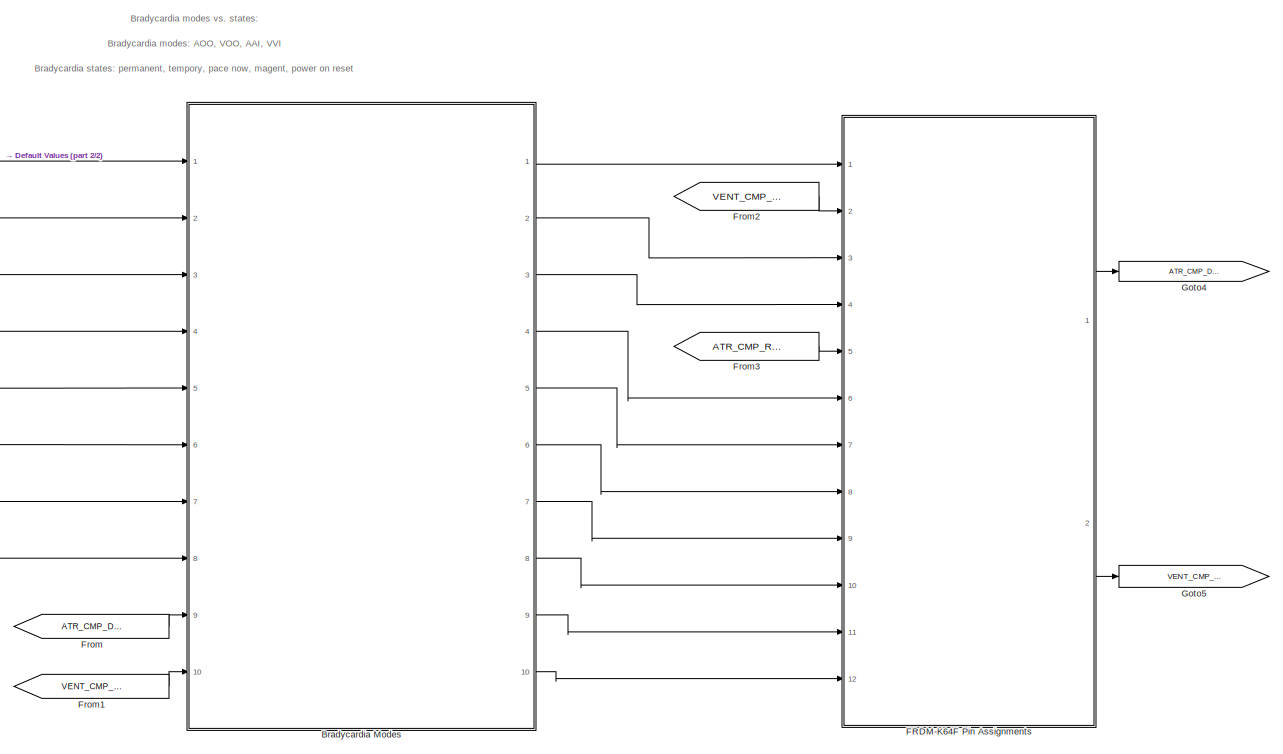
[diagram: root canvas - part 1/2, center side, full height]
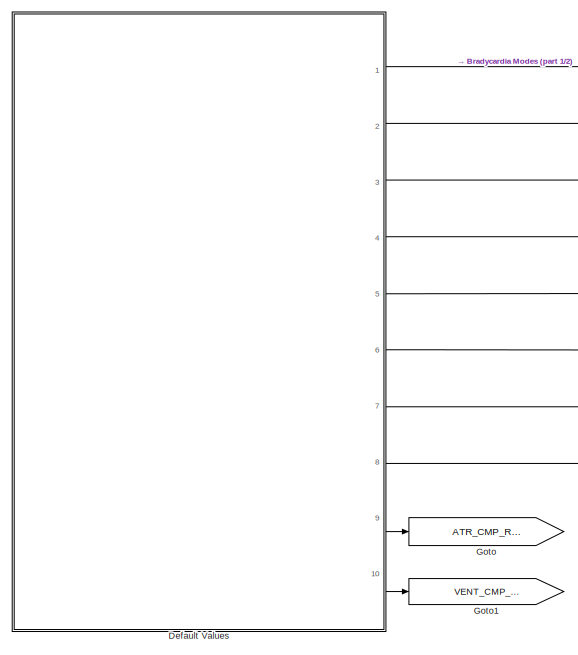
[diagram: root canvas - part 2/2, left side, full height]
MODEL slx_229aa2005bfc
KIND model
CONFIG AbsTol = auto
CONFIG EnableMultiTasking = on
CONFIG FixedStep = 1e-3
CONFIG MaxStep = auto
CONFIG MinStep = auto
CONFIG RelTol = 1e-3
CONFIG SampleTimeConstraint = Unconstrained
CONFIG Solver = FixedStepAuto
CONFIG SolverName = FixedStepAuto
CONFIG StartTime = 0.0
CONFIG StopTime = 10.0
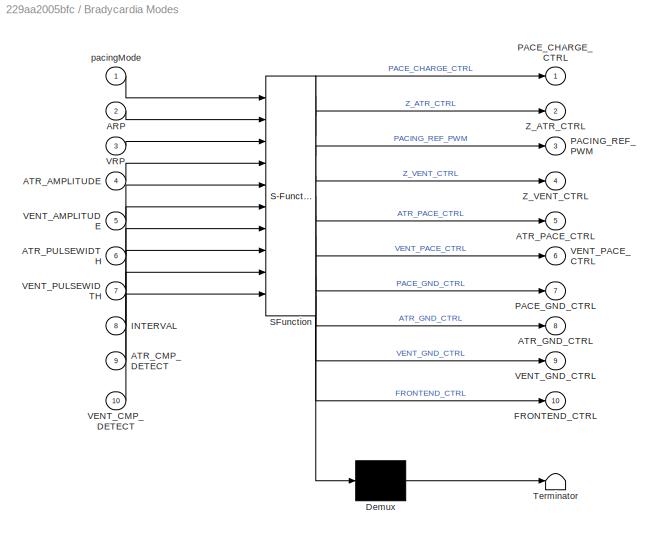
BLOCK [SubSystem] Bradycardia Modes
  ErrorFcn = Stateflow.Translate.translate
  PermitHierarchicalResolution = ExplicitOnly
  Ports = [10, 10]
  RequestExecContextInheritance = off
  SFBlockType = Chart
  TreatAsAtomicUnit = on
BLOCK [Demux] Bradycardia Modes/ Demux 
  Outputs = 1
  Ports = [1, 1]
BLOCK [S-Function] Bradycardia Modes/ SFunction 
  EnableBusSupport = on
  FunctionName = sf_sfun
  PortCounts = [10 11]
  Ports = [10, 11]
  SFcnIsStateOwnerBlock = off
  SFunctionDeploymentMode = off
  Tag = Stateflow S-Function 1
BLOCK [Terminator] Bradycardia Modes/ Terminator 
BLOCK [Inport] Bradycardia Modes/ARP
  Port = 2
BLOCK [Inport] Bradycardia Modes/ATR_AMPLITUDE
  Port = 4
BLOCK [Inport] Bradycardia Modes/ATR_CMP_DETECT
  Port = 9
BLOCK [Outport] Bradycardia Modes/ATR_GND_CTRL
  Port = 8
BLOCK [Outport] Bradycardia Modes/ATR_PACE_CTRL
  Port = 5
BLOCK [Inport] Bradycardia Modes/ATR_PULSEWIDTH
  Port = 6
BLOCK [Outport] Bradycardia Modes/FRONTEND_CTRL
  Port = 10
BLOCK [Inport] Bradycardia Modes/INTERVAL
  Port = 8
BLOCK [Outport] Bradycardia Modes/PACE_CHARGE_CTRL
BLOCK [Outport] Bradycardia Modes/PACE_GND_CTRL
  Port = 7
BLOCK [Outport] Bradycardia Modes/PACING_REF_PWM
  Port = 3
BLOCK [Inport] Bradycardia Modes/VENT_AMPLITUDE
  Port = 5
BLOCK [Inport] Bradycardia Modes/VENT_CMP_DETECT
  Port = 10
BLOCK [Outport] Bradycardia Modes/VENT_GND_CTRL
  Port = 9
BLOCK [Outport] Bradycardia Modes/VENT_PACE_CTRL
  Port = 6
BLOCK [Inport] Bradycardia Modes/VENT_PULSEWIDTH
  Port = 7
BLOCK [Inport] Bradycardia Modes/VRP
  Port = 3
BLOCK [Outport] Bradycardia Modes/Z_ATR_CTRL
  Port = 2
BLOCK [Outport] Bradycardia Modes/Z_VENT_CTRL
  Port = 4
BLOCK [Inport] Bradycardia Modes/pacingMode
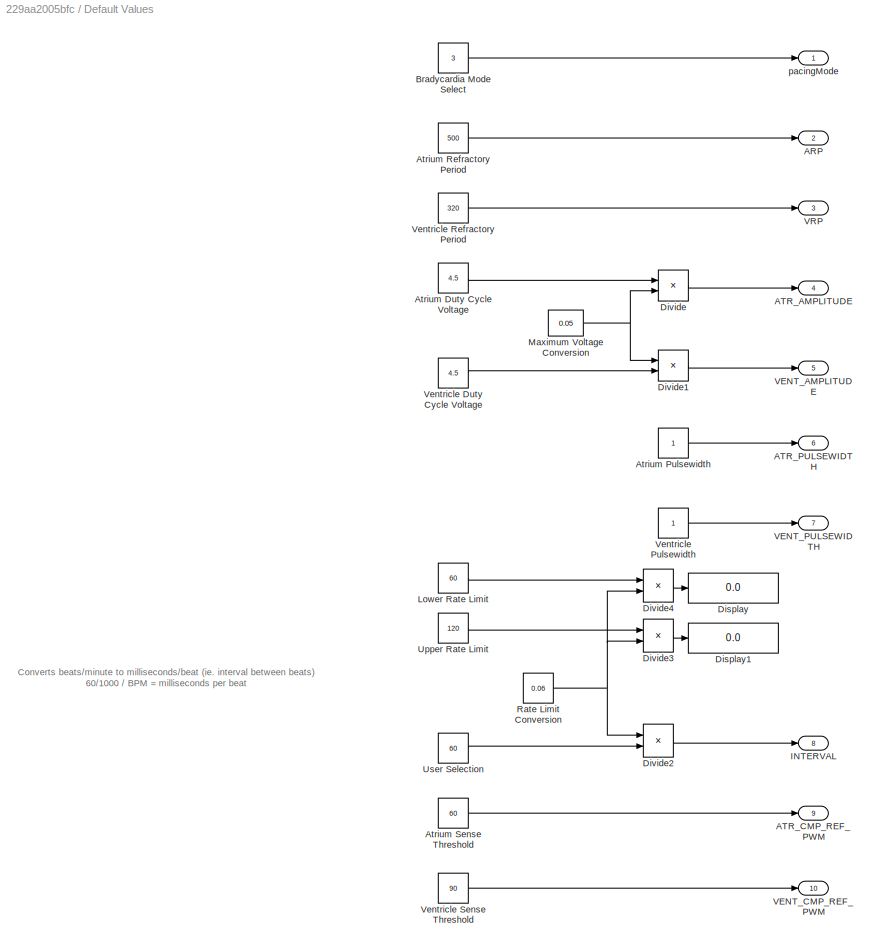
BLOCK [SubSystem] Default Values
  Ports = [0, 10]
  RequestExecContextInheritance = off
BLOCK [Outport] Default Values/ARP
  Port = 2
BLOCK [Outport] Default Values/ATR_AMPLITUDE
  Port = 4
BLOCK [Outport] Default Values/ATR_CMP_REF_PWM
  Port = 9
BLOCK [Outport] Default Values/ATR_PULSEWIDTH
  Port = 6
BLOCK [Constant] Default Values/Atrium Duty Cycle Voltage
  Value = 4.5
BLOCK [Constant] Default Values/Atrium Pulsewidth
BLOCK [Constant] Default Values/Atrium Refractory Period
  Value = 500
BLOCK [Constant] Default Values/Atrium Sense Threshold
  Value = 60
BLOCK [Constant] Default Values/Bradycardia Mode Select
  Value = 3
BLOCK [Display] Default Values/Display
  Decimation = 1
  Ports = [1]
BLOCK [Display] Default Values/Display1
  Decimation = 1
  Ports = [1]
BLOCK [Product] Default Values/Divide
  Inputs = */
  Ports = [2, 1]
BLOCK [Product] Default Values/Divide1
  Inputs = /*
  Ports = [2, 1]
BLOCK [Product] Default Values/Divide2
  Inputs = /*
  Ports = [2, 1]
BLOCK [Product] Default Values/Divide3
  Inputs = */
  Ports = [2, 1]
BLOCK [Product] Default Values/Divide4
  Inputs = */
  Ports = [2, 1]
BLOCK [Outport] Default Values/INTERVAL
  Port = 8
BLOCK [Constant] Default Values/Lower Rate Limit
  Value = 60
BLOCK [Constant] Default Values/Maximum Voltage Conversion
  Value = 0.05
BLOCK [Constant] Default Values/Rate Limit Conversion
  Value = 0.06
BLOCK [Constant] Default Values/Upper Rate Limit
  Value = 120
BLOCK [Constant] Default Values/User Selection
  Value = 60
BLOCK [Outport] Default Values/VENT_AMPLITUDE
  Port = 5
BLOCK [Outport] Default Values/VENT_CMP_REF_PWM
  Port = 10
BLOCK [Outport] Default Values/VENT_PULSEWIDTH
  Port = 7
BLOCK [Outport] Default Values/VRP
  Port = 3
BLOCK [Constant] Default Values/Ventricle Duty Cycle Voltage
  Value = 4.5
BLOCK [Constant] Default Values/Ventricle Pulsewidth
BLOCK [Constant] Default Values/Ventricle Refractory Period
  Value = 320
BLOCK [Constant] Default Values/Ventricle Sense Threshold
  Value = 90
BLOCK [Outport] Default Values/pacingMode
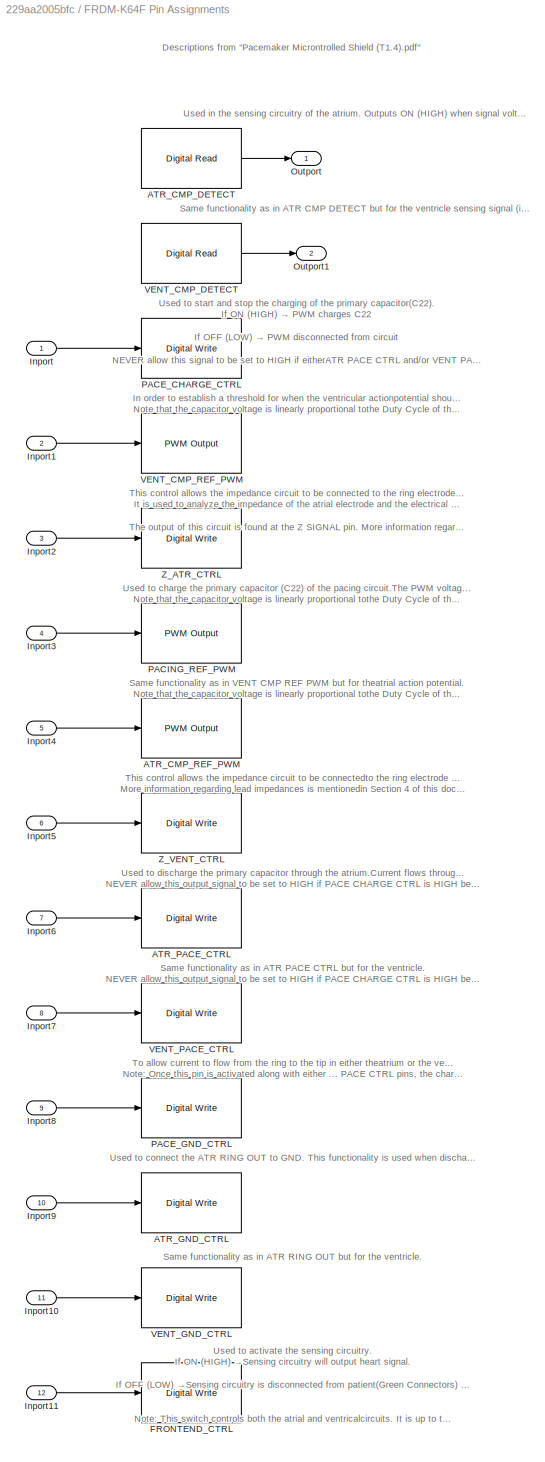
BLOCK [SubSystem] FRDM-K64F Pin Assignments
  Ports = [12, 2]
  RequestExecContextInheritance = off
BLOCK [Reference] FRDM-K64F Pin Assignments/ATR_CMP_DETECT  REF=frdmk64flib/Digital Read
  Ports = [0, 1]
  SourceBlock = frdmk64flib/Digital Read
  SourceProductBaseCode = EC_FRDM_K64F
  SourceType = freedomk64f.DigitalRead
BLOCK [Reference] FRDM-K64F Pin Assignments/ATR_CMP_REF_PWM  REF=frdmk64flib/PWM Output
  Ports = [1]
  SourceBlock = frdmk64flib/PWM Output
  SourceProductBaseCode = EC_FRDM_K64F
  SourceType = freedomk64f.PWMOutput
BLOCK [Reference] FRDM-K64F Pin Assignments/ATR_GND_CTRL  REF=frdmk64flib/Digital Write
  Ports = [1]
  SourceBlock = frdmk64flib/Digital Write
  SourceProductBaseCode = EC_FRDM_K64F
  SourceType = freedomk64f.DigitalWrite
BLOCK [Reference] FRDM-K64F Pin Assignments/ATR_PACE_CTRL  REF=frdmk64flib/Digital Write
  Ports = [1]
  SourceBlock = frdmk64flib/Digital Write
  SourceProductBaseCode = EC_FRDM_K64F
  SourceType = freedomk64f.DigitalWrite
BLOCK [Reference] FRDM-K64F Pin Assignments/FRONTEND_CTRL  REF=frdmk64flib/Digital Write
  Ports = [1]
  SourceBlock = frdmk64flib/Digital Write
  SourceProductBaseCode = EC_FRDM_K64F
  SourceType = freedomk64f.DigitalWrite
BLOCK [Inport] FRDM-K64F Pin Assignments/Inport
BLOCK [Inport] FRDM-K64F Pin Assignments/Inport1
  Port = 2
BLOCK [Inport] FRDM-K64F Pin Assignments/Inport10
  Port = 11
BLOCK [Inport] FRDM-K64F Pin Assignments/Inport11
  Port = 12
BLOCK [Inport] FRDM-K64F Pin Assignments/Inport2
  Port = 3
BLOCK [Inport] FRDM-K64F Pin Assignments/Inport3
  Port = 4
BLOCK [Inport] FRDM-K64F Pin Assignments/Inport4
  Port = 5
BLOCK [Inport] FRDM-K64F Pin Assignments/Inport5
  Port = 6
BLOCK [Inport] FRDM-K64F Pin Assignments/Inport6
  Port = 7
BLOCK [Inport] FRDM-K64F Pin Assignments/Inport7
  Port = 8
BLOCK [Inport] FRDM-K64F Pin Assignments/Inport8
  Port = 9
BLOCK [Inport] FRDM-K64F Pin Assignments/Inport9
  Port = 10
BLOCK [Outport] FRDM-K64F Pin Assignments/Outport
BLOCK [Outport] FRDM-K64F Pin Assignments/Outport1
  Port = 2
BLOCK [Reference] FRDM-K64F Pin Assignments/PACE_CHARGE_CTRL  REF=frdmk64flib/Digital Write
  Ports = [1]
  SourceBlock = frdmk64flib/Digital Write
  SourceProductBaseCode = EC_FRDM_K64F
  SourceType = freedomk64f.DigitalWrite
BLOCK [Reference] FRDM-K64F Pin Assignments/PACE_GND_CTRL  REF=frdmk64flib/Digital Write
  Ports = [1]
  SourceBlock = frdmk64flib/Digital Write
  SourceProductBaseCode = EC_FRDM_K64F
  SourceType = freedomk64f.DigitalWrite
BLOCK [Reference] FRDM-K64F Pin Assignments/PACING_REF_PWM  REF=frdmk64flib/PWM Output
  Ports = [1]
  SourceBlock = frdmk64flib/PWM Output
  SourceProductBaseCode = EC_FRDM_K64F
  SourceType = freedomk64f.PWMOutput
BLOCK [Reference] FRDM-K64F Pin Assignments/VENT_CMP_DETECT  REF=frdmk64flib/Digital Read
  Ports = [0, 1]
  SourceBlock = frdmk64flib/Digital Read
  SourceProductBaseCode = EC_FRDM_K64F
  SourceType = freedomk64f.DigitalRead
BLOCK [Reference] FRDM-K64F Pin Assignments/VENT_CMP_REF_PWM  REF=frdmk64flib/PWM Output
  Ports = [1]
  SourceBlock = frdmk64flib/PWM Output
  SourceProductBaseCode = EC_FRDM_K64F
  SourceType = freedomk64f.PWMOutput
BLOCK [Reference] FRDM-K64F Pin Assignments/VENT_GND_CTRL  REF=frdmk64flib/Digital Write
  Ports = [1]
  SourceBlock = frdmk64flib/Digital Write
  SourceProductBaseCode = EC_FRDM_K64F
  SourceType = freedomk64f.DigitalWrite
BLOCK [Reference] FRDM-K64F Pin Assignments/VENT_PACE_CTRL  REF=frdmk64flib/Digital Write
  Ports = [1]
  SourceBlock = frdmk64flib/Digital Write
  SourceProductBaseCode = EC_FRDM_K64F
  SourceType = freedomk64f.DigitalWrite
BLOCK [Reference] FRDM-K64F Pin Assignments/Z_ATR_CTRL  REF=frdmk64flib/Digital Write
  Ports = [1]
  SourceBlock = frdmk64flib/Digital Write
  SourceProductBaseCode = EC_FRDM_K64F
  SourceType = freedomk64f.DigitalWrite
BLOCK [Reference] FRDM-K64F Pin Assignments/Z_VENT_CTRL  REF=frdmk64flib/Digital Write
  Ports = [1]
  SourceBlock = frdmk64flib/Digital Write
  SourceProductBaseCode = EC_FRDM_K64F
  SourceType = freedomk64f.DigitalWrite
BLOCK [From] From
  GotoTag = ATR_CMP_DETECT
BLOCK [From] From1
  GotoTag = VENT_CMP_DETECT
BLOCK [From] From2
  GotoTag = VENT_CMP_REF_PWM
BLOCK [From] From3
  GotoTag = ATR_CMP_REF_PWM
BLOCK [Goto] Goto
  GotoTag = ATR_CMP_REF_PWM
BLOCK [Goto] Goto1
  GotoTag = VENT_CMP_REF_PWM
BLOCK [Goto] Goto4
  GotoTag = ATR_CMP_DETECT
BLOCK [Goto] Goto5
  GotoTag = VENT_CMP_DETECT
ANNOTATION (root): Bradycardia modes vs. states:
ANNOTATION (root): Bradycardia modes: AOO, VOO, AAI, VVI
ANNOTATION (root): Bradycardia states: permanent, tempory, pace now, magent, power on reset
ANNOTATION Default Values: Converts beats/minute to milliseconds/beat (ie. interval between beats) 60/1000 / BPM = milliseconds per beat
ANNOTATION FRDM-K64F Pin Assignments: This control allows the impedance circuit to be connected to the ring electrode of the atrium. It is used to analyze the impedance of the atrial electrode and the electrical connection between the atrial electrodes and the atrium itself. The output of this circuit is found at the Z SIGNAL pin. More information regarding lead impedances is mentioned in Section 4 of this document.
ANNOTATION FRDM-K64F Pin Assignments: Descriptions from "Pacemaker Microntrolled Shield (T1.4).pdf"
ANNOTATION FRDM-K64F Pin Assignments: In order to establish a threshold for when the ventricular actionpotential should be sensed, this pin uses PWM to charge a capacitor that will sustain a constant voltage for comparison. Note that the capacitor voltage is linearly proportional tothe Duty Cycle of the PWM input. Use default PWM frequency.
ANNOTATION FRDM-K64F Pin Assignments: Same functionality as in ATR CMP DETECT but for the ventricle sensing signal (includes 5mV hysteresis).
ANNOTATION FRDM-K64F Pin Assignments: Same functionality as in ATR PACE CTRL but for the ventricle. NEVER allow this output signal to be set to HIGH if PACE CHARGE CTRL is HIGH because then the patient’sventricle may be directly connected to the PWM signal!
ANNOTATION FRDM-K64F Pin Assignments: Same functionality as in ATR RING OUT but for the ventricle.
ANNOTATION FRDM-K64F Pin Assignments: Same functionality as in VENT CMP REF PWM but for theatrial action potential. Note that the capacitor voltage is linearly proportional tothe Duty Cycle of the PWM input. Use default PWM frequency.
ANNOTATION FRDM-K64F Pin Assignments: This control allows the impedance circuit to be connectedto the ring electrode of the ventricle. Its use is identical to Z ATR CTRL but for the ventricle. More information regarding lead impedances is mentionedin Section 4 of this document.
ANNOTATION FRDM-K64F Pin Assignments: To allow current to flow from the ring to the tip in either theatrium or the ventricle this pin must be HIGH since it controls the switch directly following the tip. Note: Once this pin is activated along with either ... PACE CTRL pins, the charge will flow through the switch and accumulate inthe blocking capacitor (C21).
ANNOTATION FRDM-K64F Pin Assignments: Used in the sensing circuitry of the atrium. Outputs ON (HIGH) when signal voltage is higher than threshold voltage and OFF (LOW) otherwise (includes 5mV hysteresis).
ANNOTATION FRDM-K64F Pin Assignments: Used to activate the sensing circuitry. If ON (HIGH) →Sensing circuitry will output heart signal. If OFF (LOW) →Sensing circuitry is disconnected from patient(Green Connectors) and will output nothing. Note: This switch controls both the atrial and ventricalcircuits. It is up to the programmer to only record the data theydesire since both will be activated.
ANNOTATION FRDM-K64F Pin Assignments: Used to charge the primary capacitor (C22) of the pacing circuit.The PWM voltage output by this pin saturates to 0-5V and will charge C22 is PACE CHARGE CTRL is HIGH. Note that the capacitor voltage is linearly proportional tothe Duty Cycle of the PWM input. Use default PWM frequency
ANNOTATION FRDM-K64F Pin Assignments: Used to connect the ATR RING OUT to GND. This functionality is used when discharging the blocking capacitor through theatrium to allow no charge buildup.
ANNOTATION FRDM-K64F Pin Assignments: Used to discharge the primary capacitor through the atrium.Current flows through the switch if set to HIGH. If LOW there is no current flow. Pay attention to the direction at which currentflows through the electrode. NEVER allow this output signal to be set to HIGH if PACE CHARGE CTRL is HIGH because then the patient’s atrium may be directly connected to the PWM signal!
ANNOTATION FRDM-K64F Pin Assignments: Used to start and stop the charging of the primary capacitor(C22). If ON (HIGH) → PWM charges C22 If OFF (LOW) → PWM disconnected from circuit NEVER allow this signal to be set to HIGH if eitherATR PACE CTRL and/or VENT PACE CTRL are HIGH because then the patient may be directly connected to the PWM signal!
LINE Bradycardia Modes:1 -> FRDM-K64F Pin Assignments:1
LINE Bradycardia Modes:10 -> FRDM-K64F Pin Assignments:12
LINE Bradycardia Modes:2 -> FRDM-K64F Pin Assignments:3
LINE Bradycardia Modes:3 -> FRDM-K64F Pin Assignments:4
LINE Bradycardia Modes:4 -> FRDM-K64F Pin Assignments:6
LINE Bradycardia Modes:5 -> FRDM-K64F Pin Assignments:7
LINE Bradycardia Modes:6 -> FRDM-K64F Pin Assignments:8
LINE Bradycardia Modes:7 -> FRDM-K64F Pin Assignments:9
LINE Bradycardia Modes:8 -> FRDM-K64F Pin Assignments:10
LINE Bradycardia Modes:9 -> FRDM-K64F Pin Assignments:11
LINE Default Values/Atrium Duty Cycle Voltage:1 -> Default Values/Divide:1
LINE Default Values/Atrium Pulsewidth:1 -> Default Values/ATR_PULSEWIDTH:1
LINE Default Values/Atrium Refractory Period:1 -> Default Values/ARP:1
LINE Default Values/Atrium Sense Threshold:1 -> Default Values/ATR_CMP_REF_PWM:1
LINE Default Values/Bradycardia Mode Select:1 -> Default Values/pacingMode:1
LINE Default Values/Divide1:1 -> Default Values/VENT_AMPLITUDE:1
LINE Default Values/Divide2:1 -> Default Values/INTERVAL:1
LINE Default Values/Divide3:1 -> Default Values/Display1:1
LINE Default Values/Divide4:1 -> Default Values/Display:1
LINE Default Values/Divide:1 -> Default Values/ATR_AMPLITUDE:1
LINE Default Values/Lower Rate Limit:1 -> Default Values/Divide4:1
NET Default Values/Maximum Voltage Conversion:1 -> Default Values/Divide1:1, Default Values/Divide:2
NET Default Values/Rate Limit Conversion:1 -> Default Values/Divide2:1, Default Values/Divide3:2, Default Values/Divide4:2
LINE Default Values/Upper Rate Limit:1 -> Default Values/Divide3:1
LINE Default Values/User Selection:1 -> Default Values/Divide2:2
LINE Default Values/Ventricle Duty Cycle Voltage:1 -> Default Values/Divide1:2
LINE Default Values/Ventricle Pulsewidth:1 -> Default Values/VENT_PULSEWIDTH:1
LINE Default Values/Ventricle Refractory Period:1 -> Default Values/VRP:1
LINE Default Values/Ventricle Sense Threshold:1 -> Default Values/VENT_CMP_REF_PWM:1
LINE Default Values:1 -> Bradycardia Modes:1
LINE Default Values:10 -> Goto1:1
LINE Default Values:2 -> Bradycardia Modes:2
LINE Default Values:3 -> Bradycardia Modes:3
LINE Default Values:4 -> Bradycardia Modes:4
LINE Default Values:5 -> Bradycardia Modes:5
LINE Default Values:6 -> Bradycardia Modes:6
LINE Default Values:7 -> Bradycardia Modes:7
LINE Default Values:8 -> Bradycardia Modes:8
LINE Default Values:9 -> Goto:1
LINE FRDM-K64F Pin Assignments/ATR_CMP_DETECT:1 -> FRDM-K64F Pin Assignments/Outport:1
LINE FRDM-K64F Pin Assignments/Inport10:1 -> FRDM-K64F Pin Assignments/VENT_GND_CTRL:1
LINE FRDM-K64F Pin Assignments/Inport11:1 -> FRDM-K64F Pin Assignments/FRONTEND_CTRL:1
LINE FRDM-K64F Pin Assignments/Inport1:1 -> FRDM-K64F Pin Assignments/VENT_CMP_REF_PWM:1
LINE FRDM-K64F Pin Assignments/Inport2:1 -> FRDM-K64F Pin Assignments/Z_ATR_CTRL:1
LINE FRDM-K64F Pin Assignments/Inport3:1 -> FRDM-K64F Pin Assignments/PACING_REF_PWM:1
LINE FRDM-K64F Pin Assignments/Inport4:1 -> FRDM-K64F Pin Assignments/ATR_CMP_REF_PWM:1
LINE FRDM-K64F Pin Assignments/Inport5:1 -> FRDM-K64F Pin Assignments/Z_VENT_CTRL:1
LINE FRDM-K64F Pin Assignments/Inport6:1 -> FRDM-K64F Pin Assignments/ATR_PACE_CTRL:1
LINE FRDM-K64F Pin Assignments/Inport7:1 -> FRDM-K64F Pin Assignments/VENT_PACE_CTRL:1
LINE FRDM-K64F Pin Assignments/Inport8:1 -> FRDM-K64F Pin Assignments/PACE_GND_CTRL:1
LINE FRDM-K64F Pin Assignments/Inport9:1 -> FRDM-K64F Pin Assignments/ATR_GND_CTRL:1
LINE FRDM-K64F Pin Assignments/Inport:1 -> FRDM-K64F Pin Assignments/PACE_CHARGE_CTRL:1
LINE FRDM-K64F Pin Assignments/VENT_CMP_DETECT:1 -> FRDM-K64F Pin Assignments/Outport1:1
LINE FRDM-K64F Pin Assignments:1 -> Goto4:1
LINE FRDM-K64F Pin Assignments:2 -> Goto5:1
LINE From1:1 -> Bradycardia Modes:10
LINE From2:1 -> FRDM-K64F Pin Assignments:2
LINE From3:1 -> FRDM-K64F Pin Assignments:5
LINE From:1 -> Bradycardia Modes:9
note: NET lines group one-source signal fan-out (src -> all destinations, sorted); 1:1 wires keep LINE
CHART Bradycardia Modes states=15 transitions=21
  STATE_LABEL 'AOO'
  STATE_LABEL 'Wait_Charging\n\nentry:\n%charging C22 (pg.11)\nATR_PACE_CTRL = 0\nVENT_PACE_CTRL = 0\nPACING_REF_PWM = ATR_AMPLITUDE;  % sets amplitude (duty cycle)\nPACE_CHARGE_CTRL = 1\n%release C21\nPACE_GND_CTRL = 1\nVENT_GND_CTRL = 0\nZ_ATR_CTRL = 0\nZ_VENT_CTRL = 0\nATR_PACE_CTRL = 0\nATR_GND_CTRL = 1\nVENT_GND_CTRL = 0'
  STATE_LABEL 'Pace_Discharging\nentry:\n%release C22 to charge C21\nPACE_CHARGE_CTRL = 0\nPACE_GND_CTRL = 1\nVENT_PACE_CTRL = 0\nVENT_GND_CTRL = 0\nZ_VENT_CTRL = 0\nZ_ATR_CTRL = 0\nATR_GND_CTRL = 0\nATR_PACE_CTRL = 1'
  STATE_LABEL '[after(INTERVAL, msec)]'
  STATE_LABEL '[after(ATR_PULSEWIDTH,msec)]'
  STATE_LABEL 'Wait_Charging\n\nentry:\n%charging C22 (pg.11)\nATR_PACE_CTRL = 0\nVENT_PACE_CTRL = 0\nPACING_REF_PWM = ATR_AMPLITUDE;  % sets amplitude (duty cycle)\nPACE_CHARGE_CTRL = 1\n%release C21\nPACE_GND_CTRL = 1\nVENT_GND_CTRL = 0\nZ_ATR_CTRL = 0\nZ_VENT_CTRL = 0\nATR_PACE_CTRL = 0\nATR_GND_CTRL = 1\nVENT_GND_CTRL = 0'
  STATE_LABEL 'Pace_Discharging\nentry:\n%release C22 to charge C21\nPACE_CHARGE_CTRL = 0\nPACE_GND_CTRL = 1\nVENT_PACE_CTRL = 0\nVENT_GND_CTRL = 0\nZ_VENT_CTRL = 0\nZ_ATR_CTRL = 0\nATR_GND_CTRL = 0\nATR_PACE_CTRL = 1'
  STATE_LABEL 'PacingModes\n%chooses a pacing mode\n%{\ndefined pacingModes:\nAOO = 0\nVOO = 1\nAAI = 2\nVVI = 3\n%}'
  STATE_LABEL 'VOO'
  STATE_LABEL 'Wait_Charging\n\nentry:\nATR_PACE_CTRL = 0;\nVENT_PACE_CTRL = 0;\nPACE_CHARGE_CTRL = 1;\nPACING_REF_PWM = VENT_AMPLITUDE;  % sets amplitude (duty cycle)\nPACE_GND_CTRL = 1;\nVENT_GND_CTRL = 1;\nATR_GND_CTRL = 0;\nZ_ATR_CTRL = 0;\nZ_VENT_CTRL = 0;\n'
  STATE_LABEL 'Pace_Discharging\nentry:\nPACE_GND_CTRL = 1\nVENT_PACE_CTRL = 1\nVENT_GND_CTRL = 0\nZ_VENT_CTRL = 0\nZ_ATR_CTRL = 0\nATR_GND_CTRL = 0\nATR_PACE_CTRL = 0\nPACE_CHARGE_CTRL = 0;'
  STATE_LABEL '[after(INTERVAL, msec)]'
  STATE_LABEL '[after(VENT_PULSEWIDTH, msec)]'
  STATE_LABEL 'Wait_Charging\n\nentry:\nATR_PACE_CTRL = 0;\nVENT_PACE_CTRL = 0;\nPACE_CHARGE_CTRL = 1;\nPACING_REF_PWM = VENT_AMPLITUDE;  % sets amplitude (duty cycle)\nPACE_GND_CTRL = 1;\nVENT_GND_CTRL = 1;\nATR_GND_CTRL = 0;\nZ_ATR_CTRL = 0;\nZ_VENT_CTRL = 0;\n'
  STATE_LABEL 'Pace_Discharging\nentry:\nPACE_GND_CTRL = 1\nVENT_PACE_CTRL = 1\nVENT_GND_CTRL = 0\nZ_VENT_CTRL = 0\nZ_ATR_CTRL = 0\nATR_GND_CTRL = 0\nATR_PACE_CTRL = 0\nPACE_CHARGE_CTRL = 0;'
  STATE_LABEL 'AAI'
  STATE_LABEL 'Charging_C22_Discharging_C21\n\nentry:\n% Turn on sensing:\nFRONTEND_CTRL = 1\n%Charging C22 Capacitor:\nATR_PACE_CTRL = 0\nVENT_PACE_CTRL = 0\nPACING_REF_PWM = ATR_AMPLITUDE\nPACE_CHARGE_CTRL = 1\n%\n% Discharging C21 Capacitor\nPACE_GND_CTRL = 1\nVENT_PACE_CTRL = 0\nZ_ATR_CTRL = 0\nZ_VENT_CTRL = 0\nATR_PACE_CTRL = 0\nVENT_GND_CTRL = 0\nATR_GND_CTRL = 1\n'
  STATE_LABEL 'Sensing_Heartbeat\n%after ARP, check sense\n'
  STATE_LABEL 'Discharging_C22_Charging_C21\n%AV Pace\nPACE_CHARGE_CTRL = 0\nPACE_GND_CTRL = 1\nATR_PACE_CTRL = 0\nATR_GND_CTRL = 0\nZ_ATR_CTRL = 0\nZ_VENT_CTRL = 0\nVENT_GND_CTRL = 0\nATR_PACE_CTRL = 1'
  STATE_LABEL '[ATR_CMP_DETECT == 1]'
  STATE_LABEL '[after(ARP, msec)]'
  STATE_LABEL '[after(INTERVAL - ARP, msec)]'
  STATE_LABEL '[after(ATR_PULSEWIDTH, msec)]'
  STATE_LABEL 'Charging_C22_Discharging_C21\n\nentry:\n% Turn on sensing:\nFRONTEND_CTRL = 1\n%Charging C22 Capacitor:\nATR_PACE_CTRL = 0\nVENT_PACE_CTRL = 0\nPACING_REF_PWM = ATR_AMPLITUDE\nPACE_CHARGE_CTRL = 1\n%\n% Discharging C21 Capacitor\nPACE_GND_CTRL = 1\nVENT_PACE_CTRL = 0\nZ_ATR_CTRL = 0\nZ_VENT_CTRL = 0\nATR_PACE_CTRL = 0\nVENT_GND_CTRL = 0\nATR_GND_CTRL = 1\n'
  STATE_LABEL 'Sensing_Heartbeat\n%after ARP, check sense\n'
  STATE_LABEL 'Discharging_C22_Charging_C21\n%AV Pace\nPACE_CHARGE_CTRL = 0\nPACE_GND_CTRL = 1\nATR_PACE_CTRL = 0\nATR_GND_CTRL = 0\nZ_ATR_CTRL = 0\nZ_VENT_CTRL = 0\nVENT_GND_CTRL = 0\nATR_PACE_CTRL = 1'
  STATE_LABEL 'VVI\n '
  STATE_LABEL 'Charging \n\nentry:\n% Sensing on:\nFRONTEND_CTRL = 1\n% charging C22 capacitor:\nATR_PACE_CTRL=0\nVENT_PACE_CTRL=0\nPACING_REF_PWM=VENT_AMPLITUDE\nPACE_CHARGE_CTRL=1\n%\n% Release C21 capacitor charge into ventricle gnd\nPACE_GND_CTRL=1\nVENT_PACE_CTRL=0\nZ_ATR_CTRL=0\nZ_VENT_CTRL=0\nATR_PACE_CTRL=0\nATR_GND_CTRL=0\nVENT_GND_CTRL=1\n%\n%\n%{\nPurpose: To charge the main pacing capacitor (C22) to a specific voltage, wh...<+765ch>'
  STATE_LABEL 'Transitioning\n% after ventricle refractory period, check sense'
  STATE_LABEL 'Discharging\n\nentry:\n% Release C22 capacitor charge to charge C21 capacitor\nPACE_CHARGE_CTRL=0\nPACE_GND_CTRL=1\nATR_PACE_CTRL=0\nATR_GND_CTRL=0\nZ_VENT_CTRL = 0\nZ_ATR_CTRL = 0\nVENT_GND_CTRL = 0\nVENT_PACE_CTRL = 1\n%\n%\n%{\n- To release the energy from capacitor C22 through the heart creating the pacing pulse.\n- It disconnects the charging circuit and connects the charged capacitor (C22) directly to the v...<+132ch>'
  STATE_LABEL '[VENT_CMP_DETECT == 1]'
  STATE_LABEL '[after(VENT_PULSEWIDTH,msec)]'
  STATE_LABEL '[after(VRP,msec)]'
  STATE_LABEL '[after(INTERVAL-VRP,msec)]'
  STATE_LABEL 'Charging \n\nentry:\n% Sensing on:\nFRONTEND_CTRL = 1\n% charging C22 capacitor:\nATR_PACE_CTRL=0\nVENT_PACE_CTRL=0\nPACING_REF_PWM=VENT_AMPLITUDE\nPACE_CHARGE_CTRL=1\n%\n% Release C21 capacitor charge into ventricle gnd\nPACE_GND_CTRL=1\nVENT_PACE_CTRL=0\nZ_ATR_CTRL=0\nZ_VENT_CTRL=0\nATR_PACE_CTRL=0\nATR_GND_CTRL=0\nVENT_GND_CTRL=1\n%\n%\n%{\nPurpose: To charge the main pacing capacitor (C22) to a specific voltage, wh...<+765ch>'
  STATE_LABEL 'Transitioning\n% after ventricle refractory period, check sense'
  STATE_LABEL 'Discharging\n\nentry:\n% Release C22 capacitor charge to charge C21 capacitor\nPACE_CHARGE_CTRL=0\nPACE_GND_CTRL=1\nATR_PACE_CTRL=0\nATR_GND_CTRL=0\nZ_VENT_CTRL = 0\nZ_ATR_CTRL = 0\nVENT_GND_CTRL = 0\nVENT_PACE_CTRL = 1\n%\n%\n%{\n- To release the energy from capacitor C22 through the heart creating the pacing pulse.\n- It disconnects the charging circuit and connects the charged capacitor (C22) directly to the v...<+132ch>'
CHART  states=0 transitions=0
